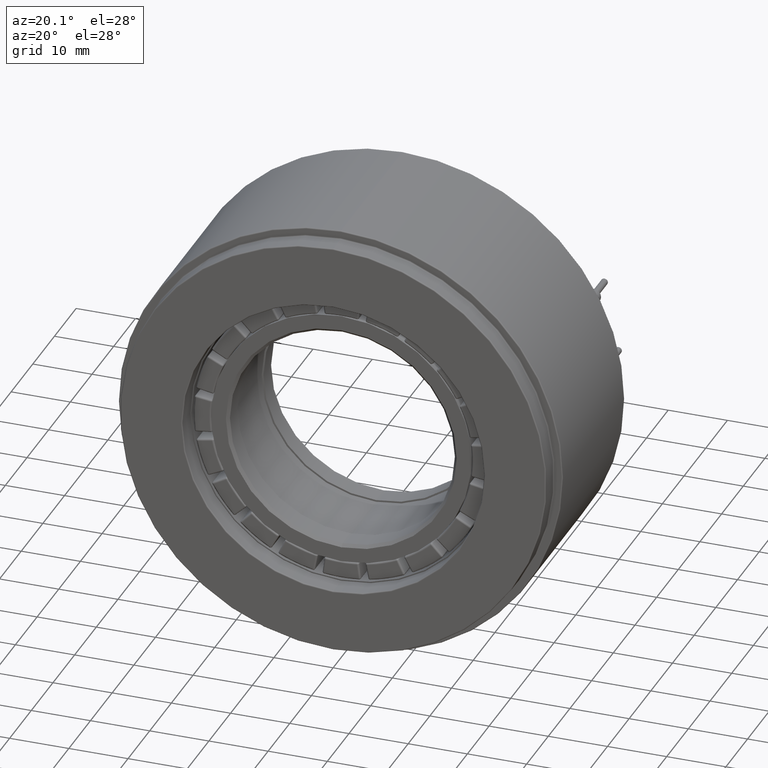
[diagram: clean part render]
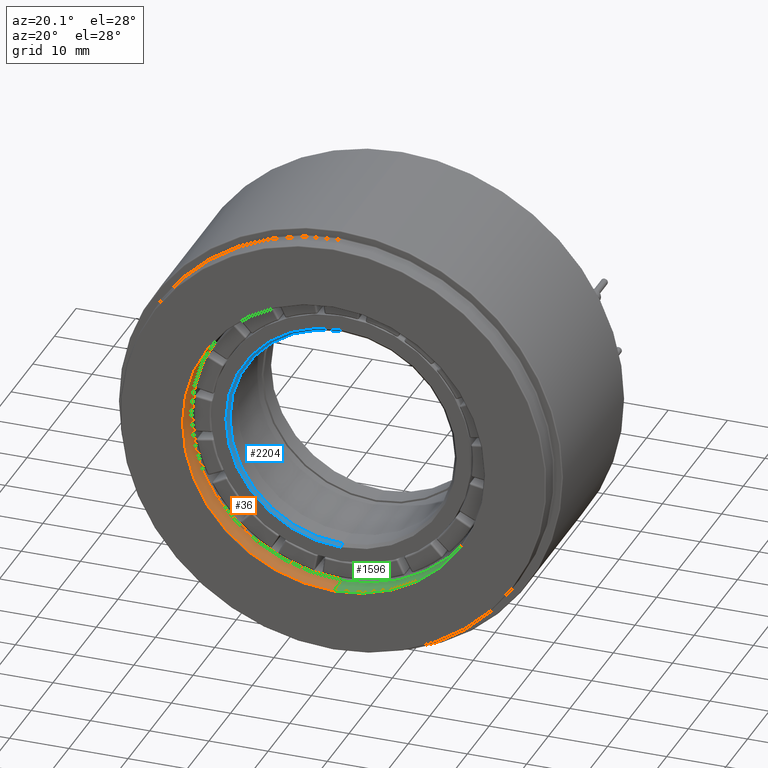
[diagram: same view with three faces highlighted in distinct colors, each labeled with its STEP entity id]
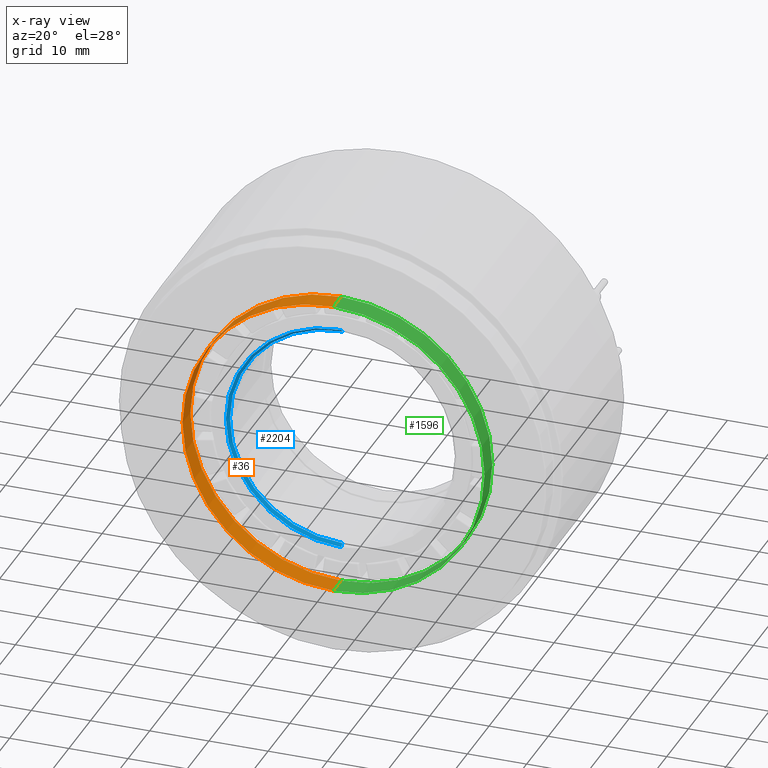
[diagram: x-ray of the same camera — body ghosted, the three highlighted faces saturated]
A machine part, auxiliary view with three faces highlighted in distinct colors.
The next image is the same camera in x-ray (body ghosted, the three faces saturated) — at least one of them is partly hidden behind the body in this view.
Their STEP definitions:

[orange] entity #36 — the highlighted cylindrical surface (partial cylindrical patch) has radius 25.5 mm, axis along (-0, -1, -0).
#5 = CIRCLE ( 'NONE', #2264, 25.50000000000000000 ) ;
#27 = EDGE_LOOP ( 'NONE', ( #2063, #2343, #1296, #1560 ) ) ;
#36 = ADVANCED_FACE ( 'NONE', ( #2994 ), #2107, .F. ) ;
#67 = CARTESIAN_POINT ( 'NONE',  ( 0.0000000000000000000, 3.799999999999998500, -25.50000000000000000 ) ) ;
#89 = VERTEX_POINT ( 'NONE', #2993 ) ;
#133 = EDGE_CURVE ( 'NONE', #89, #369, #5, .T. ) ;
#231 = DIRECTION ( 'NONE',  ( -0.0000000000000000000, -1.000000000000000000, -0.0000000000000000000 ) ) ;
#369 = VERTEX_POINT ( 'NONE', #1088 ) ;
#481 = CARTESIAN_POINT ( 'NONE',  ( 3.122849337825750200E-015, 0.0000000000000000000, 25.50000000000000000 ) ) ;
#604 = VECTOR ( 'NONE', #2796, 1000.000000000000000 ) ;
#617 = VERTEX_POINT ( 'NONE', #932 ) ;
#669 = EDGE_CURVE ( 'NONE', #617, #89, #1983, .T. ) ;
#932 = CARTESIAN_POINT ( 'NONE',  ( 3.122849337825750200E-015, 3.799999999999998500, 25.50000000000000000 ) ) ;
#942 = CARTESIAN_POINT ( 'NONE',  ( 0.0000000000000000000, 0.0000000000000000000, 0.0000000000000000000 ) ) ;
#957 = VERTEX_POINT ( 'NONE', #67 ) ;
#991 = CARTESIAN_POINT ( 'NONE',  ( 0.0000000000000000000, 3.799999999999998500, 0.0000000000000000000 ) ) ;
#1088 = CARTESIAN_POINT ( 'NONE',  ( 0.0000000000000000000, 0.1999999999999993700, -25.50000000000000000 ) ) ;
#1115 = AXIS2_PLACEMENT_3D ( 'NONE', #942, #2247, #1976 ) ;
#1243 = CARTESIAN_POINT ( 'NONE',  ( 0.0000000000000000000, 0.1999999999999993700, 0.0000000000000000000 ) ) ;
#1296 = ORIENTED_EDGE ( 'NONE', *, *, #133, .T. ) ;
#1356 = DIRECTION ( 'NONE',  ( -0.0000000000000000000, -1.000000000000000000, -0.0000000000000000000 ) ) ;
#1514 = DIRECTION ( 'NONE',  ( 0.0000000000000000000, 0.0000000000000000000, -1.000000000000000000 ) ) ;
#1560 = ORIENTED_EDGE ( 'NONE', *, *, #2900, .F. ) ;
#1647 = AXIS2_PLACEMENT_3D ( 'NONE', #991, #2799, #1514 ) ;
#1769 = DIRECTION ( 'NONE',  ( 0.0000000000000000000, 0.0000000000000000000, -1.000000000000000000 ) ) ;
#1778 = CIRCLE ( 'NONE', #1647, 25.50000000000000000 ) ;
#1846 = CARTESIAN_POINT ( 'NONE',  ( 0.0000000000000000000, 0.0000000000000000000, -25.50000000000000000 ) ) ;
#1926 = VECTOR ( 'NONE', #1356, 1000.000000000000000 ) ;
#1976 = DIRECTION ( 'NONE',  ( 0.0000000000000000000, 0.0000000000000000000, -1.000000000000000000 ) ) ;
#1983 = LINE ( 'NONE', #481, #604 ) ;
#2018 = EDGE_CURVE ( 'NONE', #617, #957, #1778, .T. ) ;
#2063 = ORIENTED_EDGE ( 'NONE', *, *, #2018, .F. ) ;
#2107 = CYLINDRICAL_SURFACE ( 'NONE', #1115, 25.50000000000000000 ) ;
#2247 = DIRECTION ( 'NONE',  ( -0.0000000000000000000, -1.000000000000000000, -0.0000000000000000000 ) ) ;
#2264 = AXIS2_PLACEMENT_3D ( 'NONE', #1243, #231, #1769 ) ;
#2343 = ORIENTED_EDGE ( 'NONE', *, *, #669, .T. ) ;
#2612 = LINE ( 'NONE', #1846, #1926 ) ;
#2796 = DIRECTION ( 'NONE',  ( -0.0000000000000000000, -1.000000000000000000, -0.0000000000000000000 ) ) ;
#2799 = DIRECTION ( 'NONE',  ( -0.0000000000000000000, -1.000000000000000000, -0.0000000000000000000 ) ) ;
#2900 = EDGE_CURVE ( 'NONE', #957, #369, #2612, .T. ) ;
#2993 = CARTESIAN_POINT ( 'NONE',  ( 3.122849337825750200E-015, 0.1999999999999993700, 25.50000000000000000 ) ) ;
#2994 = FACE_OUTER_BOUND ( 'NONE', #27, .T. ) ;

[blue] entity #2204 — the highlighted conical surface has half-angle 45 deg.
#30 = CONICAL_SURFACE ( 'NONE', #3289, 19.00000000000000000, 0.7853981633974415100 ) ;
#43 = ORIENTED_EDGE ( 'NONE', *, *, #2386, .F. ) ;
#198 = LINE ( 'NONE', #3213, #2213 ) ;
#247 = VERTEX_POINT ( 'NONE', #1597 ) ;
#318 = LINE ( 'NONE', #2663, #1089 ) ;
#381 = VERTEX_POINT ( 'NONE', #3209 ) ;
#610 = CARTESIAN_POINT ( 'NONE',  ( 0.0000000000000000000, -1.836970198721029700E-016, 0.0000000000000000000 ) ) ;
#638 = DIRECTION ( 'NONE',  ( 0.0000000000000000000, -0.7071067811865524600, -0.7071067811865426900 ) ) ;
#733 = CARTESIAN_POINT ( 'NONE',  ( 0.0000000000000000000, 0.5000000000000072200, 0.0000000000000000000 ) ) ;
#863 = DIRECTION ( 'NONE',  ( 0.0000000000000000000, 1.000000000000000000, 0.0000000000000000000 ) ) ;
#1003 = AXIS2_PLACEMENT_3D ( 'NONE', #610, #863, #3277 ) ;
#1015 = CARTESIAN_POINT ( 'NONE',  ( 2.388061258337338900E-015, -1.836970198721029700E-016, 19.50000000000000000 ) ) ;
#1026 = EDGE_CURVE ( 'NONE', #381, #2071, #318, .T. ) ;
#1089 = VECTOR ( 'NONE', #2672, 1000.000000000000000 ) ;
#1289 = DIRECTION ( 'NONE',  ( 0.0000000000000000000, -1.000000000000000000, 0.0000000000000000000 ) ) ;
#1402 = EDGE_CURVE ( 'NONE', #247, #381, #2620, .T. ) ;
#1534 = AXIS2_PLACEMENT_3D ( 'NONE', #2449, #1289, #2816 ) ;
#1597 = CARTESIAN_POINT ( 'NONE',  ( 0.0000000000000000000, 0.5000000000000072200, -19.00000000000000000 ) ) ;
#1748 = ORIENTED_EDGE ( 'NONE', *, *, #3052, .T. ) ;
#1819 = DIRECTION ( 'NONE',  ( 0.0000000000000000000, -1.000000000000000000, 0.0000000000000000000 ) ) ;
#2071 = VERTEX_POINT ( 'NONE', #1015 ) ;
#2131 = ORIENTED_EDGE ( 'NONE', *, *, #1026, .F. ) ;
#2204 = ADVANCED_FACE ( 'NONE', ( #2937 ), #30, .F. ) ;
#2213 = VECTOR ( 'NONE', #638, 1000.000000000000000 ) ;
#2249 = EDGE_LOOP ( 'NONE', ( #2131, #2813, #1748, #43 ) ) ;
#2352 = DIRECTION ( 'NONE',  ( 0.0000000000000000000, 0.0000000000000000000, -1.000000000000000000 ) ) ;
#2386 = EDGE_CURVE ( 'NONE', #2071, #3128, #2935, .T. ) ;
#2449 = CARTESIAN_POINT ( 'NONE',  ( 0.0000000000000000000, 0.5000000000000072200, 0.0000000000000000000 ) ) ;
#2457 = CARTESIAN_POINT ( 'NONE',  ( 0.0000000000000000000, -1.836970198721029700E-016, -19.50000000000000000 ) ) ;
#2620 = CIRCLE ( 'NONE', #1534, 19.00000000000000000 ) ;
#2663 = CARTESIAN_POINT ( 'NONE',  ( 2.326828918379971000E-015, 0.5000000000000072200, 19.00000000000000000 ) ) ;
#2672 = DIRECTION ( 'NONE',  ( 8.659560562354874900E-017, -0.7071067811865524600, 0.7071067811865426900 ) ) ;
#2813 = ORIENTED_EDGE ( 'NONE', *, *, #1402, .F. ) ;
#2816 = DIRECTION ( 'NONE',  ( 0.0000000000000000000, 0.0000000000000000000, -1.000000000000000000 ) ) ;
#2935 = CIRCLE ( 'NONE', #1003, 19.50000000000000000 ) ;
#2937 = FACE_OUTER_BOUND ( 'NONE', #2249, .T. ) ;
#3052 = EDGE_CURVE ( 'NONE', #247, #3128, #198, .T. ) ;
#3128 = VERTEX_POINT ( 'NONE', #2457 ) ;
#3209 = CARTESIAN_POINT ( 'NONE',  ( 2.326828918379971000E-015, 0.5000000000000072200, 19.00000000000000000 ) ) ;
#3213 = CARTESIAN_POINT ( 'NONE',  ( 0.0000000000000000000, 0.5000000000000072200, -19.00000000000000000 ) ) ;
#3277 = DIRECTION ( 'NONE',  ( 0.0000000000000000000, 0.0000000000000000000, -1.000000000000000000 ) ) ;
#3289 = AXIS2_PLACEMENT_3D ( 'NONE', #733, #1819, #2352 ) ;

[green] entity #1596 — the highlighted cylindrical surface (partial cylindrical patch) has radius 25.5 mm, axis along (-0, -1, -0).
#67 = CARTESIAN_POINT ( 'NONE',  ( 0.0000000000000000000, 3.799999999999998500, -25.50000000000000000 ) ) ;
#89 = VERTEX_POINT ( 'NONE', #2993 ) ;
#279 = CARTESIAN_POINT ( 'NONE',  ( 0.0000000000000000000, 0.0000000000000000000, 0.0000000000000000000 ) ) ;
#369 = VERTEX_POINT ( 'NONE', #1088 ) ;
#373 = AXIS2_PLACEMENT_3D ( 'NONE', #279, #818, #1592 ) ;
#442 = EDGE_CURVE ( 'NONE', #369, #89, #3230, .T. ) ;
#462 = EDGE_LOOP ( 'NONE', ( #2520, #3020, #1458, #2080 ) ) ;
#475 = DIRECTION ( 'NONE',  ( -0.0000000000000000000, -1.000000000000000000, -0.0000000000000000000 ) ) ;
#481 = CARTESIAN_POINT ( 'NONE',  ( 3.122849337825750200E-015, 0.0000000000000000000, 25.50000000000000000 ) ) ;
#604 = VECTOR ( 'NONE', #2796, 1000.000000000000000 ) ;
#617 = VERTEX_POINT ( 'NONE', #932 ) ;
#669 = EDGE_CURVE ( 'NONE', #617, #89, #1983, .T. ) ;
#818 = DIRECTION ( 'NONE',  ( -0.0000000000000000000, -1.000000000000000000, -0.0000000000000000000 ) ) ;
#932 = CARTESIAN_POINT ( 'NONE',  ( 3.122849337825750200E-015, 3.799999999999998500, 25.50000000000000000 ) ) ;
#955 = AXIS2_PLACEMENT_3D ( 'NONE', #1766, #475, #3021 ) ;
#957 = VERTEX_POINT ( 'NONE', #67 ) ;
#1088 = CARTESIAN_POINT ( 'NONE',  ( 0.0000000000000000000, 0.1999999999999993700, -25.50000000000000000 ) ) ;
#1356 = DIRECTION ( 'NONE',  ( -0.0000000000000000000, -1.000000000000000000, -0.0000000000000000000 ) ) ;
#1418 = DIRECTION ( 'NONE',  ( -0.0000000000000000000, -1.000000000000000000, -0.0000000000000000000 ) ) ;
#1458 = ORIENTED_EDGE ( 'NONE', *, *, #2900, .T. ) ;
#1592 = DIRECTION ( 'NONE',  ( 0.0000000000000000000, 0.0000000000000000000, -1.000000000000000000 ) ) ;
#1596 = ADVANCED_FACE ( 'NONE', ( #2775 ), #2856, .F. ) ;
#1766 = CARTESIAN_POINT ( 'NONE',  ( 0.0000000000000000000, 3.799999999999998500, 0.0000000000000000000 ) ) ;
#1846 = CARTESIAN_POINT ( 'NONE',  ( 0.0000000000000000000, 0.0000000000000000000, -25.50000000000000000 ) ) ;
#1926 = VECTOR ( 'NONE', #1356, 1000.000000000000000 ) ;
#1932 = EDGE_CURVE ( 'NONE', #957, #617, #2295, .T. ) ;
#1983 = LINE ( 'NONE', #481, #604 ) ;
#2080 = ORIENTED_EDGE ( 'NONE', *, *, #442, .T. ) ;
#2205 = CARTESIAN_POINT ( 'NONE',  ( 0.0000000000000000000, 0.1999999999999993700, 0.0000000000000000000 ) ) ;
#2295 = CIRCLE ( 'NONE', #955, 25.50000000000000000 ) ;
#2520 = ORIENTED_EDGE ( 'NONE', *, *, #669, .F. ) ;
#2550 = AXIS2_PLACEMENT_3D ( 'NONE', #2205, #1418, #2938 ) ;
#2612 = LINE ( 'NONE', #1846, #1926 ) ;
#2775 = FACE_OUTER_BOUND ( 'NONE', #462, .T. ) ;
#2796 = DIRECTION ( 'NONE',  ( -0.0000000000000000000, -1.000000000000000000, -0.0000000000000000000 ) ) ;
#2856 = CYLINDRICAL_SURFACE ( 'NONE', #373, 25.50000000000000000 ) ;
#2900 = EDGE_CURVE ( 'NONE', #957, #369, #2612, .T. ) ;
#2938 = DIRECTION ( 'NONE',  ( 0.0000000000000000000, 0.0000000000000000000, -1.000000000000000000 ) ) ;
#2993 = CARTESIAN_POINT ( 'NONE',  ( 3.122849337825750200E-015, 0.1999999999999993700, 25.50000000000000000 ) ) ;
#3020 = ORIENTED_EDGE ( 'NONE', *, *, #1932, .F. ) ;
#3021 = DIRECTION ( 'NONE',  ( 0.0000000000000000000, 0.0000000000000000000, -1.000000000000000000 ) ) ;
#3230 = CIRCLE ( 'NONE', #2550, 25.50000000000000000 ) ;